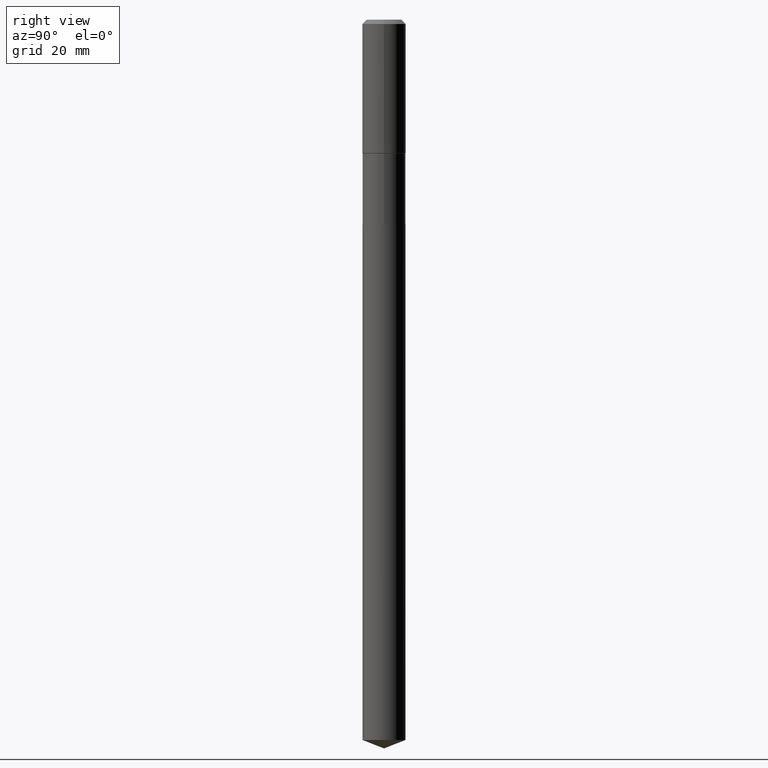
[diagram: clean part render]
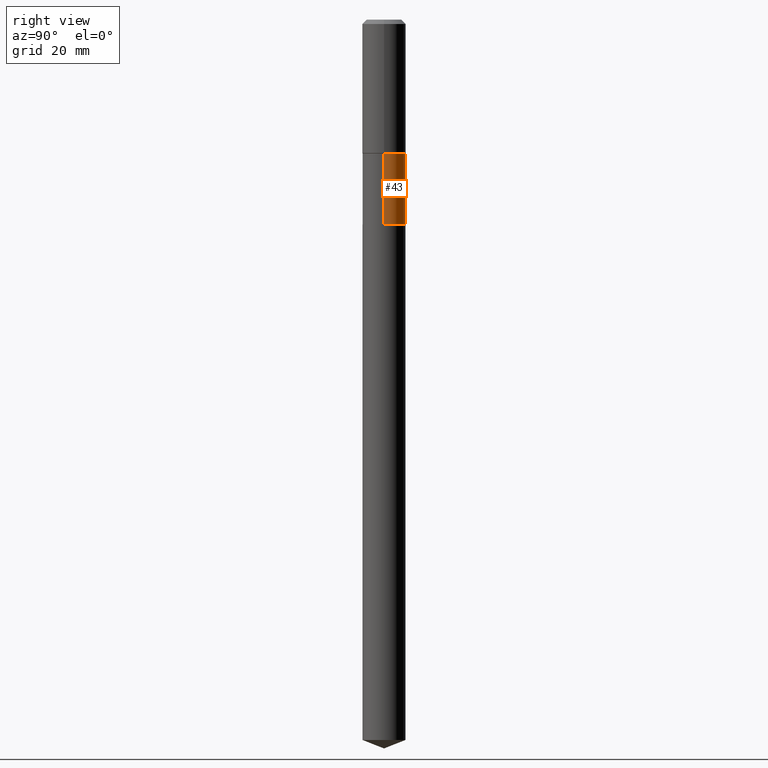
[diagram: same view with one face highlighted and labeled with its STEP entity id]
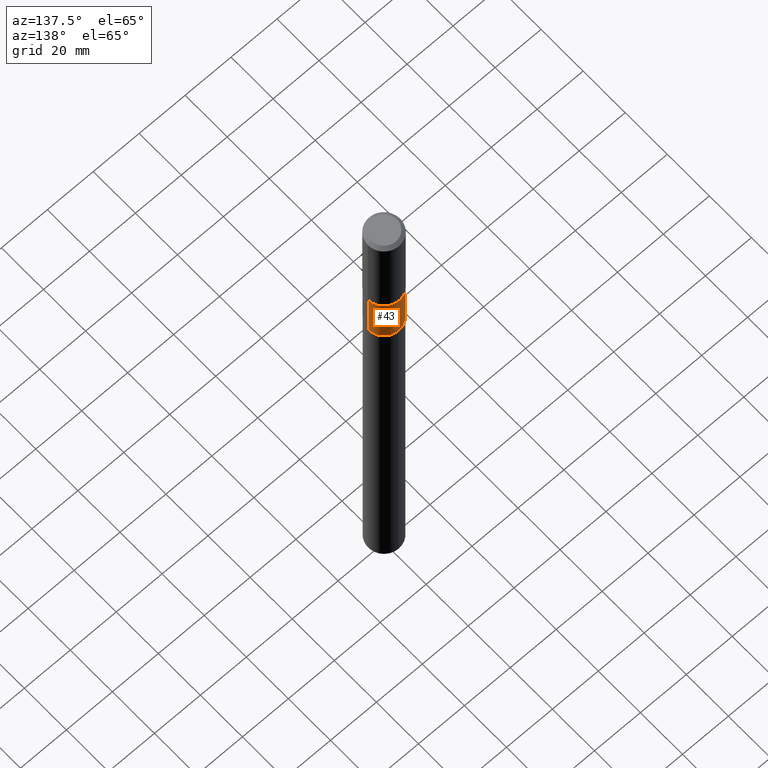
[diagram: same view with one face highlighted and labeled with its STEP entity id]
A machine part, right view. The second image highlights one B-rep face of the part: STEP entity #43.
A second angle (auxiliary view) of the same face is appended — the face is thin or edge-on in the first view.
In plain terms, the highlighted cylindrical surface (edge-blend (fillet) strip) has radius 6.8999 mm, axis along (-0, 0, 1).
Its self-contained STEP definition (entity closure, byte-faithful):
#24 = AXIS2_PLACEMENT_3D ( 'NONE', #484, #174, #298 ) ;
#32 = DIRECTION ( 'NONE',  ( 1.000000000000000000, -6.982962677686266711E-15, 0.000000000000000000 ) ) ;
#40 = EDGE_CURVE ( 'NONE', #324, #239, #309, .T. ) ;
#43 = ADVANCED_FACE ( 'NONE', ( #377 ), #447, .T. ) ;
#47 = ORIENTED_EDGE ( 'NONE', *, *, #91, .F. ) ;
#48 = CARTESIAN_POINT ( 'NONE',  ( -0.2716500000000000026, -5.536343501423748497E-15, -2.586499999999998245 ) ) ;
#53 = CARTESIAN_POINT ( 'NONE',  ( 0.2716499999999999471, -1.896921811393474014E-15, 1.324613421144965822E-29 ) ) ;
#91 = EDGE_CURVE ( 'NONE', #348, #151, #241, .T. ) ;
#106 = AXIS2_PLACEMENT_3D ( 'NONE', #293, #334, #485 ) ;
#123 = AXIS2_PLACEMENT_3D ( 'NONE', #416, #223, #32 ) ;
#134 = LINE ( 'NONE', #53, #338 ) ;
#151 = VERTEX_POINT ( 'NONE', #220 ) ;
#157 = ORIENTED_EDGE ( 'NONE', *, *, #398, .F. ) ;
#174 = DIRECTION ( 'NONE',  ( -2.445468806185136597E-29, 3.491481338843145583E-15, 1.000000000000000000 ) ) ;
#206 = VECTOR ( 'NONE', #288, 39.37007874015748143 ) ;
#215 = CARTESIAN_POINT ( 'NONE',  ( 0.2716499999999998916, -7.799271014707807533E-15, -1.690499999999998781 ) ) ;
#220 = CARTESIAN_POINT ( 'NONE',  ( -0.2716499999999998916, -5.536343501423750074E-15, -1.690499999999998781 ) ) ;
#223 = DIRECTION ( 'NONE',  ( -2.445468806185136597E-29, 3.491481338843145583E-15, 1.000000000000000000 ) ) ;
#239 = VERTEX_POINT ( 'NONE', #48 ) ;
#241 = CIRCLE ( 'NONE', #123, 0.2716499999999998916 ) ;
#245 = EDGE_LOOP ( 'NONE', ( #365, #286, #47, #157 ) ) ;
#248 = DIRECTION ( 'NONE',  ( -2.445468806185136877E-29, 3.491481338843145188E-15, 1.000000000000000000 ) ) ;
#284 = CARTESIAN_POINT ( 'NONE',  ( 0.2716500000000000026, -1.092763829431126499E-14, -2.586499999999998245 ) ) ;
#286 = ORIENTED_EDGE ( 'NONE', *, *, #382, .T. ) ;
#288 = DIRECTION ( 'NONE',  ( -2.445468806185136877E-29, 3.491481338843145188E-15, 1.000000000000000000 ) ) ;
#293 = CARTESIAN_POINT ( 'NONE',  ( 0.000000000000000000, 0.000000000000000000, 0.000000000000000000 ) ) ;
#298 = DIRECTION ( 'NONE',  ( 1.000000000000000000, -6.982962677686269866E-15, 0.000000000000000000 ) ) ;
#309 = CIRCLE ( 'NONE', #24, 0.2716500000000000026 ) ;
#324 = VERTEX_POINT ( 'NONE', #284 ) ;
#334 = DIRECTION ( 'NONE',  ( -2.445468806185136597E-29, 3.491481338843145583E-15, 1.000000000000000000 ) ) ;
#338 = VECTOR ( 'NONE', #248, 39.37007874015748143 ) ;
#348 = VERTEX_POINT ( 'NONE', #215 ) ;
#363 = CARTESIAN_POINT ( 'NONE',  ( -0.2716499999999999471, 1.930189341692311779E-15, -1.336228717267745096E-29 ) ) ;
#365 = ORIENTED_EDGE ( 'NONE', *, *, #40, .T. ) ;
#377 = FACE_OUTER_BOUND ( 'NONE', #245, .T. ) ;
#382 = EDGE_CURVE ( 'NONE', #239, #151, #408, .T. ) ;
#398 = EDGE_CURVE ( 'NONE', #324, #348, #134, .T. ) ;
#408 = LINE ( 'NONE', #363, #206 ) ;
#416 = CARTESIAN_POINT ( 'NONE',  ( 4.134065016855970892E-29, -5.902349203314333913E-15, -1.690499999999998781 ) ) ;
#447 = CYLINDRICAL_SURFACE ( 'NONE', #106, 0.2716499999999999471 ) ;
#484 = CARTESIAN_POINT ( 'NONE',  ( 6.325205067197851305E-29, -9.030716482917789004E-15, -2.586499999999998245 ) ) ;
#485 = DIRECTION ( 'NONE',  ( 1.000000000000000000, -6.982962677686266711E-15, 4.876176775795936353E-29 ) ) ;